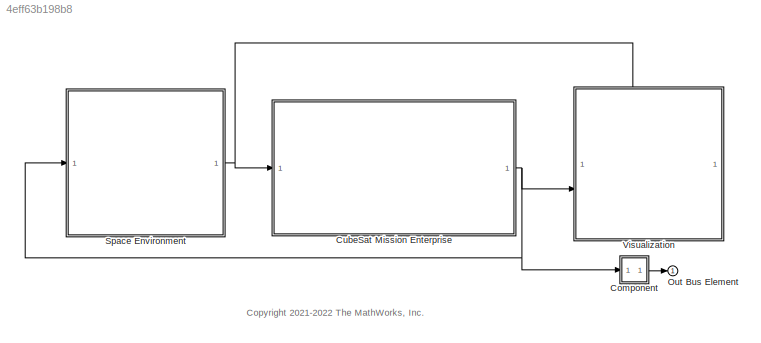
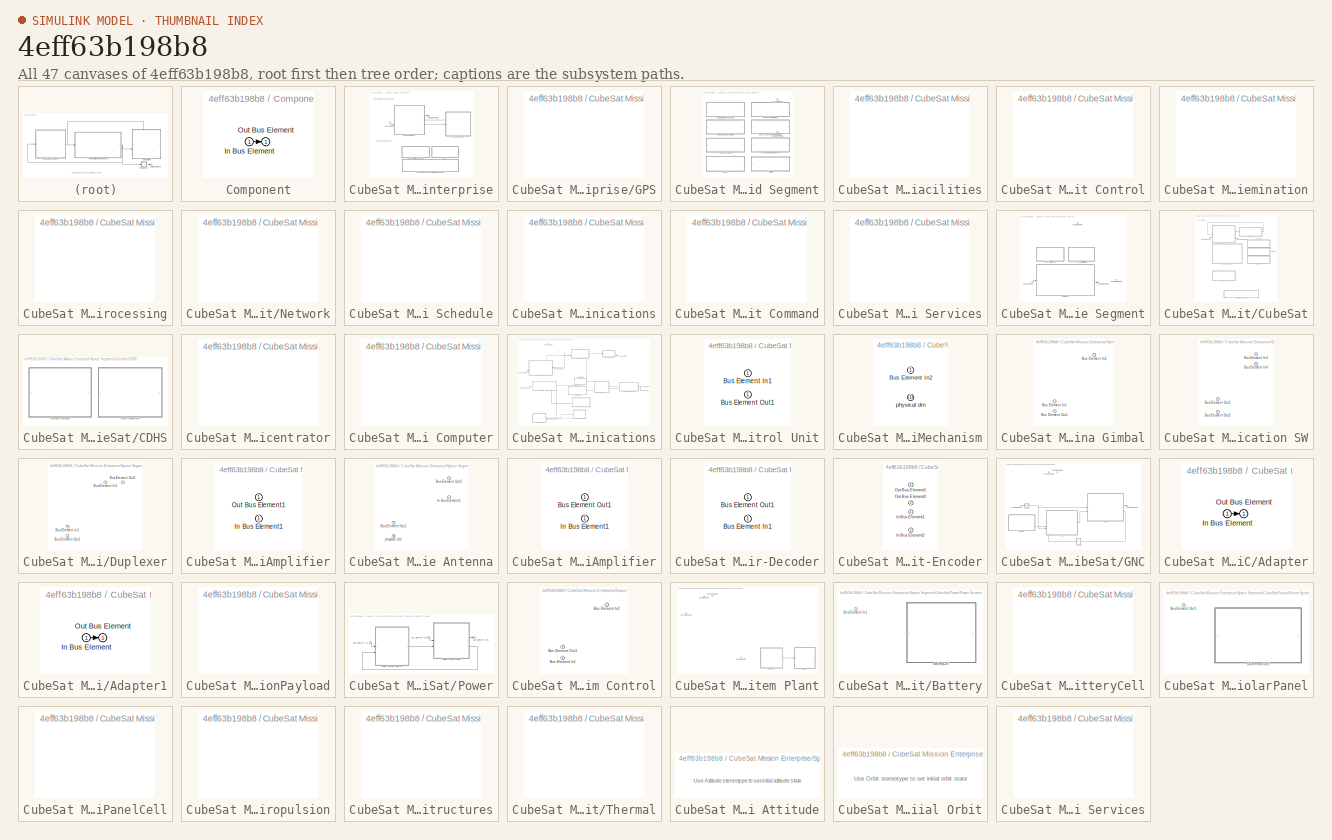
[diagram: thumbnail index - all 47 canvases of the model, root first then tree order]
MODEL slx_4eff63b198b8
KIND model
CONFIG InitFcn = detectChangeOrbitalElements;
BLOCK [SubSystem] Component
  PortSchema = {"entries":[{"content":{"margin":10,"minimumSpacing":15,"sides":[{"content":{"connectorIds":["In1"]},"type":"ConnectorPlacement.EquallySpacedRectSide","uuid":"9886ff7d-e976-4db1-93a5-6c4881d35d20"},{"content":{"connectorIds":["Out1"],"side":"RIGHT"},"type":"ConnectorPlacement.EquallySpacedRectSide","uuid":"ddfda7ac-6297-4455-a293-3eb8c5cedc24"},{"content":{"connectorIds":[],"side":"TOP"},"type":"C...<+272ch>
BLOCK [Inport] Component/In Bus Element
BLOCK [Outport] Component/Out Bus Element
BLOCK [SubSystem] CubeSat Mission Enterprise
  PortSchema = {"entries":[{"content":{"headerSize":26,"margin":15,"minimumSpacing":25,"sides":[{"content":{"connectorIds":["In1"]},"type":"ConnectorPlacement.EquallySpacedRectSide","uuid":"9b45e59d-ccd6-4576-99ba-beb2b78ee3b5"},{"content":{"connectorIds":["Out1"],"side":"RIGHT"},"type":"ConnectorPlacement.EquallySpacedRectSide","uuid":"e86d53dc-9e16-4af5-b392-fbf304437072"},{"content":{"connectorIds":[],"side":...<+288ch>
BLOCK [Outport] CubeSat Mission Enterprise/Bus Element Out1
BLOCK [Inport] CubeSat Mission Enterprise/Environment1
BLOCK [SubSystem] CubeSat Mission Enterprise/GPS
  PortSchema = {"entries":[{"content":{"headerSize":26,"margin":15,"minimumSpacing":25,"sides":[{"content":{"connectorIds":[]},"type":"ConnectorPlacement.EquallySpacedRectSide","uuid":"9b45e59d-ccd6-4576-99ba-beb2b78ee3b5"},{"content":{"connectorIds":[],"side":"RIGHT"},"type":"ConnectorPlacement.EquallySpacedRectSide","uuid":"e86d53dc-9e16-4af5-b392-fbf304437072"},{"content":{"connectorIds":[],"side":"TOP"},"typ...<+279ch>  <repeated x9 — deduplicated; at blocks: GPS, Ground Equipment Control, Mission Data Processing, Network, Plan and Schedule, Ground Station Services, CDHS, Structures, Tranport, Launch and Deploy Services>
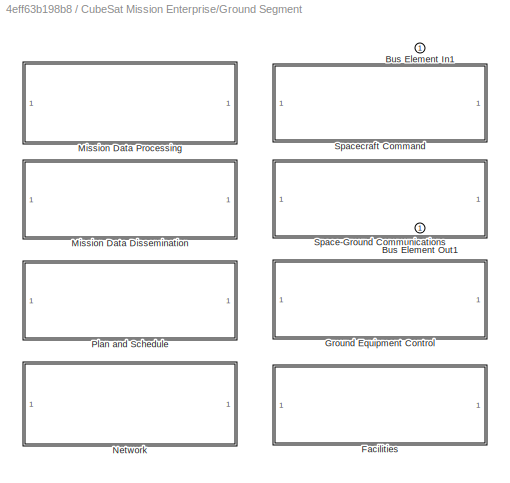
BLOCK [SubSystem] CubeSat Mission Enterprise/Ground Segment
  PortSchema = {"entries":[{"content":{"headerSize":26,"margin":15,"minimumSpacing":25,"sides":[{"content":{"connectorIds":["Out1","In1"]},"type":"ConnectorPlacement.EquallySpacedRectSide","uuid":"9b45e59d-ccd6-4576-99ba-beb2b78ee3b5"},{"content":{"connectorIds":[],"side":"RIGHT"},"type":"ConnectorPlacement.EquallySpacedRectSide","uuid":"e86d53dc-9e16-4af5-b392-fbf304437072"},{"content":{"connectorIds":[],"side"...<+291ch>
BLOCK [Inport] CubeSat Mission Enterprise/Ground Segment/Bus Element In1
BLOCK [Outport] CubeSat Mission Enterprise/Ground Segment/Bus Element Out1
BLOCK [SubSystem] CubeSat Mission Enterprise/Ground Segment/Facilities
  PortSchema = {"entries":[{"content":{"headerSize":26,"margin":15,"minimumSpacing":25,"sides":[{"content":{"connectorIds":[]},"type":"ConnectorPlacement.EquallySpacedRectSide","uuid":"ec0b20de-43af-4595-9773-1ccab80dcb2a"},{"content":{"connectorIds":[],"side":"RIGHT"},"type":"ConnectorPlacement.EquallySpacedRectSide","uuid":"ac6e6885-e3fb-4062-8a30-0baee43cecf2"},{"content":{"connectorIds":[],"side":"TOP"},"typ...<+277ch>
BLOCK [SubSystem] CubeSat Mission Enterprise/Ground Segment/Ground Equipment Control
BLOCK [SubSystem] CubeSat Mission Enterprise/Ground Segment/Mission Data Dissemination
  PortSchema = {"entries":[{"content":{"headerSize":26,"margin":15,"minimumSpacing":25,"sides":[{"content":{"connectorIds":[]},"type":"ConnectorPlacement.EquallySpacedRectSide","uuid":"9b45e59d-ccd6-4576-99ba-beb2b78ee3b5"},{"content":{"connectorIds":[],"side":"RIGHT"},"type":"ConnectorPlacement.EquallySpacedRectSide","uuid":"e86d53dc-9e16-4af5-b392-fbf304437072"},{"content":{"connectorIds":[],"side":"TOP"},"typ...<+277ch>  <repeated x8 — deduplicated; at blocks: Mission Data Dissemination, Space-Ground Communications, Spacecraft Command, CubeSat Initial Attitude, CubeSat Initial Orbit, MissionPayload, Propulsion, Thermal>
BLOCK [SubSystem] CubeSat Mission Enterprise/Ground Segment/Mission Data Processing
BLOCK [SubSystem] CubeSat Mission Enterprise/Ground Segment/Network
BLOCK [SubSystem] CubeSat Mission Enterprise/Ground Segment/Plan and Schedule
BLOCK [SubSystem] CubeSat Mission Enterprise/Ground Segment/Space-Ground Communications
BLOCK [SubSystem] CubeSat Mission Enterprise/Ground Segment/Spacecraft Command
BLOCK [SubSystem] CubeSat Mission Enterprise/Ground Station Services
BLOCK [SubSystem] CubeSat Mission Enterprise/Space Segment
  PortSchema = {"entries":[{"content":{"headerSize":26,"margin":15,"minimumSpacing":25,"sides":[{"content":{"connectorIds":["In2"]},"type":"ConnectorPlacement.EquallySpacedRectSide","uuid":"9b45e59d-ccd6-4576-99ba-beb2b78ee3b5"},{"content":{"connectorIds":["Out1","In1","Out2"],"side":"RIGHT"},"type":"ConnectorPlacement.EquallySpacedRectSide","uuid":"e86d53dc-9e16-4af5-b392-fbf304437072"},{"content":{"connectorId...<+301ch>
BLOCK [Inport] CubeSat Mission Enterprise/Space Segment/Bus Element In1
BLOCK [Outport] CubeSat Mission Enterprise/Space Segment/Bus Element Out1
BLOCK [Outport] CubeSat Mission Enterprise/Space Segment/Bus Element Out2
  Port = 2
BLOCK [SubSystem] CubeSat Mission Enterprise/Space Segment/CubeSat
  PortSchema = {"entries":[{"content":{"headerSize":26,"margin":15,"minimumSpacing":25,"sides":[{"content":{"connectorIds":["In1"]},"type":"ConnectorPlacement.EquallySpacedRectSide","uuid":"9b45e59d-ccd6-4576-99ba-beb2b78ee3b5"},{"content":{"connectorIds":["Out1"],"side":"RIGHT"},"type":"ConnectorPlacement.EquallySpacedRectSide","uuid":"e86d53dc-9e16-4af5-b392-fbf304437072"},{"content":{"connectorIds":[],"side":...<+288ch>
BLOCK [SubSystem] CubeSat Mission Enterprise/Space Segment/CubeSat Initial Attitude
BLOCK [SubSystem] CubeSat Mission Enterprise/Space Segment/CubeSat Initial Orbit
BLOCK [Outport] CubeSat Mission Enterprise/Space Segment/CubeSat/Bus Element Out1
BLOCK [SubSystem] CubeSat Mission Enterprise/Space Segment/CubeSat/CDHS
BLOCK [SubSystem] CubeSat Mission Enterprise/Space Segment/CubeSat/CDHS/Data Concentrator
  PortSchema = {"entries":[{"content":{"headerSize":26,"margin":15,"minimumSpacing":25,"sides":[{"content":{"connectorIds":[]},"type":"ConnectorPlacement.EquallySpacedRectSide","uuid":"5f91b340-2dca-474f-99b1-4cfb93e98d8a"},{"content":{"connectorIds":[],"side":"RIGHT"},"type":"ConnectorPlacement.EquallySpacedRectSide","uuid":"d2e4d2f7-eaea-406c-8999-5255faa209a3"},{"content":{"connectorIds":[],"side":"TOP"},"typ...<+277ch>
BLOCK [SubSystem] CubeSat Mission Enterprise/Space Segment/CubeSat/CDHS/OnBoard Computer
  PortSchema = {"entries":[{"content":{"headerSize":26,"margin":15,"minimumSpacing":25,"sides":[{"content":{"connectorIds":[]},"type":"ConnectorPlacement.EquallySpacedRectSide","uuid":"5f91b340-2dca-474f-99b1-4cfb93e98d8a"},{"content":{"connectorIds":[],"side":"RIGHT"},"type":"ConnectorPlacement.EquallySpacedRectSide","uuid":"d2e4d2f7-eaea-406c-8999-5255faa209a3"},{"content":{"connectorIds":[],"side":"TOP"},"typ...<+277ch>
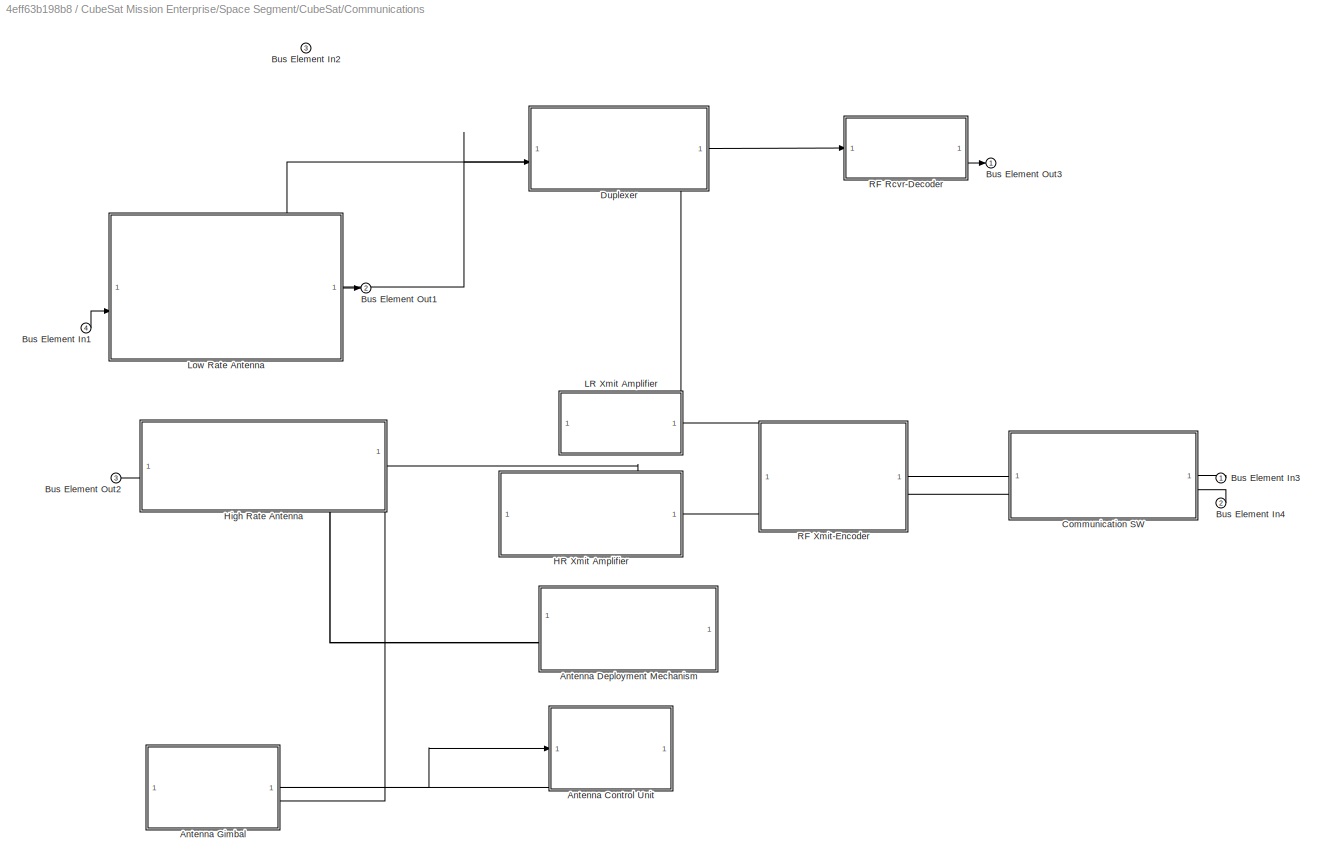
BLOCK [SubSystem] CubeSat Mission Enterprise/Space Segment/CubeSat/Communications
  PortSchema = {"entries":[{"content":{"headerSize":26,"margin":15,"minimumSpacing":25,"sides":[{"content":{"connectorIds":["Out2","Out3","In4"]},"type":"ConnectorPlacement.EquallySpacedRectSide","uuid":"9b45e59d-ccd6-4576-99ba-beb2b78ee3b5"},{"content":{"connectorIds":["In1","In2","Out1"],"side":"RIGHT"},"type":"ConnectorPlacement.EquallySpacedRectSide","uuid":"e86d53dc-9e16-4af5-b392-fbf304437072"},{"content":...<+445ch>
BLOCK [SubSystem] CubeSat Mission Enterprise/Space Segment/CubeSat/Communications/Antenna Control Unit
  PortSchema = {"entries":[{"content":{"headerSize":26,"margin":15,"minimumSpacing":25,"sides":[{"content":{"connectorIds":["Out1","In1"]},"type":"ConnectorPlacement.EquallySpacedRectSide","uuid":"d12c9c4e-7d10-4150-a1f7-4bc66b9b2e34"},{"content":{"side":"RIGHT"},"type":"ConnectorPlacement.EquallySpacedRectSide","uuid":"793dc56b-3770-4e46-8fb3-9dca20abd5c7"},{"content":{"side":"TOP"},"type":"ConnectorPlacement.E...<+253ch>
BLOCK [Inport] CubeSat Mission Enterprise/Space Segment/CubeSat/Communications/Antenna Control Unit/Bus Element In1
BLOCK [Outport] CubeSat Mission Enterprise/Space Segment/CubeSat/Communications/Antenna Control Unit/Bus Element Out1
BLOCK [SubSystem] CubeSat Mission Enterprise/Space Segment/CubeSat/Communications/Antenna Deployment Mechanism
  PortSchema = {"entries":[{"content":{"headerSize":26,"margin":15,"minimumSpacing":25,"sides":[{"content":{"connectorIds":["LConn1"]},"type":"ConnectorPlacement.EquallySpacedRectSide","uuid":"d12c9c4e-7d10-4150-a1f7-4bc66b9b2e34"},{"content":{"connectorIds":["In1"],"side":"RIGHT"},"type":"ConnectorPlacement.EquallySpacedRectSide","uuid":"793dc56b-3770-4e46-8fb3-9dca20abd5c7"},{"content":{"side":"TOP"},"type":"C...<+272ch>
BLOCK [Inport] CubeSat Mission Enterprise/Space Segment/CubeSat/Communications/Antenna Deployment Mechanism/Bus Element In2
BLOCK [PMIOPort] CubeSat Mission Enterprise/Space Segment/CubeSat/Communications/Antenna Deployment Mechanism/physical dm
  Side = Left
BLOCK [SubSystem] CubeSat Mission Enterprise/Space Segment/CubeSat/Communications/Antenna Gimbal
  PortSchema = {"entries":[{"content":{"headerSize":26,"margin":15,"minimumSpacing":25,"sides":[{"content":{},"type":"ConnectorPlacement.EquallySpacedRectSide","uuid":"d12c9c4e-7d10-4150-a1f7-4bc66b9b2e34"},{"content":{"connectorIds":["In1","Out1"],"side":"RIGHT"},"type":"ConnectorPlacement.EquallySpacedRectSide","uuid":"793dc56b-3770-4e46-8fb3-9dca20abd5c7"},{"content":{"connectorIds":["In2"],"side":"TOP"},"typ...<+277ch>
BLOCK [Inport] CubeSat Mission Enterprise/Space Segment/CubeSat/Communications/Antenna Gimbal/Bus Element In1
  Port = 2
BLOCK [Inport] CubeSat Mission Enterprise/Space Segment/CubeSat/Communications/Antenna Gimbal/Bus Element In2
BLOCK [Outport] CubeSat Mission Enterprise/Space Segment/CubeSat/Communications/Antenna Gimbal/Bus Element Out1
BLOCK [Inport] CubeSat Mission Enterprise/Space Segment/CubeSat/Communications/Bus Element In1
  Port = 4
BLOCK [Inport] CubeSat Mission Enterprise/Space Segment/CubeSat/Communications/Bus Element In2
  Port = 3
BLOCK [Inport] CubeSat Mission Enterprise/Space Segment/CubeSat/Communications/Bus Element In3
BLOCK [Inport] CubeSat Mission Enterprise/Space Segment/CubeSat/Communications/Bus Element In4
  Port = 2
BLOCK [Outport] CubeSat Mission Enterprise/Space Segment/CubeSat/Communications/Bus Element Out1
  Port = 2
BLOCK [Outport] CubeSat Mission Enterprise/Space Segment/CubeSat/Communications/Bus Element Out2
  Port = 3
BLOCK [Outport] CubeSat Mission Enterprise/Space Segment/CubeSat/Communications/Bus Element Out3
BLOCK [SubSystem] CubeSat Mission Enterprise/Space Segment/CubeSat/Communications/Communication SW
  PortSchema = {"entries":[{"content":{"headerSize":26,"margin":15,"minimumSpacing":25,"sides":[{"content":{"connectorIds":["Out1","Out2"]},"type":"ConnectorPlacement.EquallySpacedRectSide","uuid":"d12c9c4e-7d10-4150-a1f7-4bc66b9b2e34"},{"content":{"connectorIds":["In1","In2"],"side":"RIGHT"},"type":"ConnectorPlacement.EquallySpacedRectSide","uuid":"793dc56b-3770-4e46-8fb3-9dca20abd5c7"},{"content":{"side":"TOP"...<+283ch>
BLOCK [Inport] CubeSat Mission Enterprise/Space Segment/CubeSat/Communications/Communication SW/Bus Element In3
BLOCK [Inport] CubeSat Mission Enterprise/Space Segment/CubeSat/Communications/Communication SW/Bus Element In4
  Port = 2
BLOCK [Outport] CubeSat Mission Enterprise/Space Segment/CubeSat/Communications/Communication SW/Bus Element Out1
BLOCK [Outport] CubeSat Mission Enterprise/Space Segment/CubeSat/Communications/Communication SW/Bus Element Out2
  Port = 2
BLOCK [SubSystem] CubeSat Mission Enterprise/Space Segment/CubeSat/Communications/Duplexer
  PortSchema = {"entries":[{"content":{"headerSize":26,"margin":15,"minimumSpacing":25,"sides":[{"content":{"connectorIds":["Out2","In2"]},"type":"ConnectorPlacement.EquallySpacedRectSide","uuid":"d12c9c4e-7d10-4150-a1f7-4bc66b9b2e34"},{"content":{"connectorIds":["Out1"],"side":"RIGHT"},"type":"ConnectorPlacement.EquallySpacedRectSide","uuid":"793dc56b-3770-4e46-8fb3-9dca20abd5c7"},{"content":{"side":"TOP"},"typ...<+426ch>
BLOCK [Inport] CubeSat Mission Enterprise/Space Segment/CubeSat/Communications/Duplexer/Bus Element In1
  Port = 2
BLOCK [Inport] CubeSat Mission Enterprise/Space Segment/CubeSat/Communications/Duplexer/Bus Element In2
BLOCK [Outport] CubeSat Mission Enterprise/Space Segment/CubeSat/Communications/Duplexer/Bus Element Out1
  Port = 2
BLOCK [Outport] CubeSat Mission Enterprise/Space Segment/CubeSat/Communications/Duplexer/Bus Element Out2
BLOCK [SubSystem] CubeSat Mission Enterprise/Space Segment/CubeSat/Communications/HR Xmit Amplifier
  PortSchema = {"entries":[{"content":{"headerSize":26,"margin":15,"minimumSpacing":25,"sides":[{"content":{"connectorIds":["Out1"]},"type":"ConnectorPlacement.EquallySpacedRectSide","uuid":"d12c9c4e-7d10-4150-a1f7-4bc66b9b2e34"},{"content":{"connectorIds":["In1"],"side":"RIGHT"},"type":"ConnectorPlacement.EquallySpacedRectSide","uuid":"793dc56b-3770-4e46-8fb3-9dca20abd5c7"},{"content":{"side":"TOP"},"type":"Con...<+270ch>
BLOCK [Inport] CubeSat Mission Enterprise/Space Segment/CubeSat/Communications/HR Xmit Amplifier/In Bus Element1
BLOCK [Outport] CubeSat Mission Enterprise/Space Segment/CubeSat/Communications/HR Xmit Amplifier/Out Bus Element1
BLOCK [SubSystem] CubeSat Mission Enterprise/Space Segment/CubeSat/Communications/High Rate Antenna
  PortSchema = {"entries":[{"content":{"headerSize":26,"margin":15,"minimumSpacing":25,"sides":[{"content":{"connectorIds":["Out2"]},"type":"ConnectorPlacement.EquallySpacedRectSide","uuid":"d12c9c4e-7d10-4150-a1f7-4bc66b9b2e34"},{"content":{"connectorIds":["In1"],"side":"RIGHT"},"type":"ConnectorPlacement.EquallySpacedRectSide","uuid":"793dc56b-3770-4e46-8fb3-9dca20abd5c7"},{"content":{"side":"TOP"},"type":"Con...<+429ch>
BLOCK [Outport] CubeSat Mission Enterprise/Space Segment/CubeSat/Communications/High Rate Antenna/Bus Element Out1
  Port = 2
BLOCK [Outport] CubeSat Mission Enterprise/Space Segment/CubeSat/Communications/High Rate Antenna/Bus Element Out2
BLOCK [Inport] CubeSat Mission Enterprise/Space Segment/CubeSat/Communications/High Rate Antenna/In Bus Element1
BLOCK [PMIOPort] CubeSat Mission Enterprise/Space Segment/CubeSat/Communications/High Rate Antenna/physical dm
  Side = Right
BLOCK [SubSystem] CubeSat Mission Enterprise/Space Segment/CubeSat/Communications/LR Xmit Amplifier
  PortSchema = {"entries":[{"content":{"headerSize":26,"margin":15,"minimumSpacing":25,"sides":[{"content":{},"type":"ConnectorPlacement.EquallySpacedRectSide","uuid":"d12c9c4e-7d10-4150-a1f7-4bc66b9b2e34"},{"content":{"connectorIds":["In1"],"side":"RIGHT"},"type":"ConnectorPlacement.EquallySpacedRectSide","uuid":"793dc56b-3770-4e46-8fb3-9dca20abd5c7"},{"content":{"connectorIds":["Out1"],"side":"TOP"},"type":"Co...<+271ch>
BLOCK [Outport] CubeSat Mission Enterprise/Space Segment/CubeSat/Communications/LR Xmit Amplifier/Bus Element Out1
BLOCK [Inport] CubeSat Mission Enterprise/Space Segment/CubeSat/Communications/LR Xmit Amplifier/In Bus Element1
BLOCK [ModelReference] CubeSat Mission Enterprise/Space Segment/CubeSat/Communications/Low Rate Antenna
  ModelNameDialog = LowRateAntenna
  ModelReferenceVersion = 1.9
  PortSchema = {"entries":[{"content":{"headerSize":38,"margin":15,"minimumSpacing":25,"sides":[{"content":{"connectorIds":["In1","In2"]},"type":"ConnectorPlacement.EquallySpacedRectSide","uuid":"5f91b340-2dca-474f-99b1-4cfb93e98d8a"},{"content":{"connectorIds":["Out2","Out1"],"side":"RIGHT"},"type":"ConnectorPlacement.EquallySpacedRectSide","uuid":"d2e4d2f7-eaea-406c-8999-5255faa209a3"},{"content":{"side":"TOP"...<+283ch>
BLOCK [SubSystem] CubeSat Mission Enterprise/Space Segment/CubeSat/Communications/RF Rcvr-Decoder
  PortSchema = {"entries":[{"content":{"headerSize":26,"margin":15,"minimumSpacing":25,"sides":[{"content":{"connectorIds":["In1"]},"type":"ConnectorPlacement.EquallySpacedRectSide","uuid":"d12c9c4e-7d10-4150-a1f7-4bc66b9b2e34"},{"content":{"connectorIds":["Out1"],"side":"RIGHT"},"type":"ConnectorPlacement.EquallySpacedRectSide","uuid":"793dc56b-3770-4e46-8fb3-9dca20abd5c7"},{"content":{"side":"TOP"},"type":"Con...<+270ch>
BLOCK [Inport] CubeSat Mission Enterprise/Space Segment/CubeSat/Communications/RF Rcvr-Decoder/Bus Element In1
BLOCK [Outport] CubeSat Mission Enterprise/Space Segment/CubeSat/Communications/RF Rcvr-Decoder/Bus Element Out1
BLOCK [SubSystem] CubeSat Mission Enterprise/Space Segment/CubeSat/Communications/RF Xmit-Encoder
  PortSchema = {"entries":[{"content":{"headerSize":26,"margin":15,"minimumSpacing":25,"sides":[{"content":{"connectorIds":["Out1","Out2"]},"type":"ConnectorPlacement.EquallySpacedRectSide","uuid":"d12c9c4e-7d10-4150-a1f7-4bc66b9b2e34"},{"content":{"connectorIds":["In1","In2"],"side":"RIGHT"},"type":"ConnectorPlacement.EquallySpacedRectSide","uuid":"793dc56b-3770-4e46-8fb3-9dca20abd5c7"},{"content":{"side":"TOP"...<+283ch>
BLOCK [Inport] CubeSat Mission Enterprise/Space Segment/CubeSat/Communications/RF Xmit-Encoder/In Bus Element1
BLOCK [Inport] CubeSat Mission Enterprise/Space Segment/CubeSat/Communications/RF Xmit-Encoder/In Bus Element2
  Port = 2
BLOCK [Outport] CubeSat Mission Enterprise/Space Segment/CubeSat/Communications/RF Xmit-Encoder/Out Bus Element1
BLOCK [Outport] CubeSat Mission Enterprise/Space Segment/CubeSat/Communications/RF Xmit-Encoder/Out Bus Element2
  Port = 2
BLOCK [Inport] CubeSat Mission Enterprise/Space Segment/CubeSat/Environment1
BLOCK [SubSystem] CubeSat Mission Enterprise/Space Segment/CubeSat/GNC
  PortSchema = {"entries":[{"content":{"headerSize":26,"margin":15,"minimumSpacing":25,"sides":[{"content":{"connectorIds":["In1","In2"]},"type":"ConnectorPlacement.EquallySpacedRectSide","uuid":"9b45e59d-ccd6-4576-99ba-beb2b78ee3b5"},{"content":{"connectorIds":["Out1","Out2"],"side":"RIGHT"},"type":"ConnectorPlacement.EquallySpacedRectSide","uuid":"e86d53dc-9e16-4af5-b392-fbf304437072"},{"content":{"connectorId...<+301ch>
BLOCK [ModelReference] CubeSat Mission Enterprise/Space Segment/CubeSat/GNC/ACS
  ModelNameDialog = asbCubeSatACS
  ModelReferenceVersion = 11.0
  PortSchema = {"entries":[{"content":{"headerSize":38,"margin":15,"minimumSpacing":25,"sides":[{"content":{"connectorIds":["In3","In2","In1"]},"type":"ConnectorPlacement.EquallySpacedRectSide","uuid":"0f167fc6-742e-49a6-ba84-7432b698566b"},{"content":{"connectorIds":["Out1"],"side":"RIGHT"},"type":"ConnectorPlacement.EquallySpacedRectSide","uuid":"3739c3b1-9e94-48d6-b273-772045adf57e"},{"content":{"connectorIds...<+444ch>
BLOCK [SubSystem] CubeSat Mission Enterprise/Space Segment/CubeSat/GNC/Adapter
  PortSchema = {"entries":[{"content":{"margin":10,"minimumSpacing":15,"sides":[{"content":{"connectorIds":["In1"]},"type":"ConnectorPlacement.EquallySpacedRectSide","uuid":"0f167fc6-742e-49a6-ba84-7432b698566b"},{"content":{"connectorIds":["Out1"],"side":"RIGHT"},"type":"ConnectorPlacement.EquallySpacedRectSide","uuid":"3739c3b1-9e94-48d6-b273-772045adf57e"},{"content":{"connectorIds":[],"side":"TOP"},"type":"C...<+416ch>
BLOCK [Inport] CubeSat Mission Enterprise/Space Segment/CubeSat/GNC/Adapter/In Bus Element
BLOCK [Outport] CubeSat Mission Enterprise/Space Segment/CubeSat/GNC/Adapter/Out Bus Element
BLOCK [SubSystem] CubeSat Mission Enterprise/Space Segment/CubeSat/GNC/Adapter1
  PortSchema = {"entries":[{"content":{"margin":10,"minimumSpacing":15,"sides":[{"content":{"connectorIds":["Out1"]},"type":"ConnectorPlacement.EquallySpacedRectSide","uuid":"0f167fc6-742e-49a6-ba84-7432b698566b"},{"content":{"connectorIds":["In1"],"side":"RIGHT"},"type":"ConnectorPlacement.EquallySpacedRectSide","uuid":"3739c3b1-9e94-48d6-b273-772045adf57e"},{"content":{"connectorIds":[],"side":"TOP"},"type":"C...<+416ch>
BLOCK [Inport] CubeSat Mission Enterprise/Space Segment/CubeSat/GNC/Adapter1/In Bus Element
BLOCK [Outport] CubeSat Mission Enterprise/Space Segment/CubeSat/GNC/Adapter1/Out Bus Element
BLOCK [Inport] CubeSat Mission Enterprise/Space Segment/CubeSat/GNC/Bus Element In1
  Port = 2
BLOCK [Inport] CubeSat Mission Enterprise/Space Segment/CubeSat/GNC/Bus Element In2
BLOCK [Outport] CubeSat Mission Enterprise/Space Segment/CubeSat/GNC/Bus Element Out1
BLOCK [Outport] CubeSat Mission Enterprise/Space Segment/CubeSat/GNC/Bus Element Out2
  Port = 2
BLOCK [ModelReference] CubeSat Mission Enterprise/Space Segment/CubeSat/GNC/Operator
  ModelNameDialog = asbCubeSatVehicleOperator.slx
  ModelReferenceVersion = 9.0
  PortSchema = {"entries":[{"content":{"headerSize":38,"margin":15,"minimumSpacing":25,"sides":[{"content":{"connectorIds":[]},"type":"ConnectorPlacement.EquallySpacedRectSide","uuid":"0cfa3760-6acd-4ee9-b963-b5fbd04f8f00"},{"content":{"connectorIds":["Out1"],"side":"RIGHT"},"type":"ConnectorPlacement.EquallySpacedRectSide","uuid":"77ddd3d4-6692-4839-8cf9-45c7d2a217c2"},{"content":{"connectorIds":[],"side":"TOP"...<+427ch>
BLOCK [ModelReference] CubeSat Mission Enterprise/Space Segment/CubeSat/GNC/Plant
  ModelNameDialog = asbCubeSatVehiclePlant.slx
  ModelReferenceVersion = 10.0
  PortSchema = {"entries":[{"content":{"headerSize":38,"margin":15,"minimumSpacing":25,"sides":[{"content":{"connectorIds":["In1","In2"]},"type":"ConnectorPlacement.EquallySpacedRectSide","uuid":"03f9f3cf-bad9-4ee2-9ea8-9738e2c4045a"},{"content":{"connectorIds":["Out1","Out2"],"side":"RIGHT"},"type":"ConnectorPlacement.EquallySpacedRectSide","uuid":"a92bb464-fb2e-4a9d-9894-a6e38f24e9d5"},{"content":{"connectorId...<+301ch>
BLOCK [SubSystem] CubeSat Mission Enterprise/Space Segment/CubeSat/MissionPayload
BLOCK [SubSystem] CubeSat Mission Enterprise/Space Segment/CubeSat/Power
  PortSchema = {"entries":[{"content":{"headerSize":26,"margin":15,"minimumSpacing":25,"sides":[{"content":{"connectorIds":["In1"]},"type":"ConnectorPlacement.EquallySpacedRectSide","uuid":"9b45e59d-ccd6-4576-99ba-beb2b78ee3b5"},{"content":{"connectorIds":["Out1"],"side":"RIGHT"},"type":"ConnectorPlacement.EquallySpacedRectSide","uuid":"e86d53dc-9e16-4af5-b392-fbf304437072"},{"content":{"connectorIds":[],"side":...<+290ch>
BLOCK [Inport] CubeSat Mission Enterprise/Space Segment/CubeSat/Power/Bus Element In1
BLOCK [Inport] CubeSat Mission Enterprise/Space Segment/CubeSat/Power/Bus Element In2
BLOCK [Outport] CubeSat Mission Enterprise/Space Segment/CubeSat/Power/Bus Element Out1
BLOCK [SubSystem] CubeSat Mission Enterprise/Space Segment/CubeSat/Power/Power System Control
  PortSchema = {"entries":[{"content":{"headerSize":26,"margin":15,"minimumSpacing":25,"sides":[{"content":{"connectorIds":["In1","In2"]},"type":"ConnectorPlacement.EquallySpacedRectSide","uuid":"796081c6-2161-46d9-94c7-9250e1efb39a"},{"content":{"connectorIds":["Out1"],"side":"RIGHT"},"type":"ConnectorPlacement.EquallySpacedRectSide","uuid":"b842dbfb-bf0a-4727-8e1c-eb47e2e48592"},{"content":{"connectorIds":[],"...<+294ch>
  VariantControl = Choice_1
BLOCK [Inport] CubeSat Mission Enterprise/Space Segment/CubeSat/Power/Power System Control/Bus Element In1
  Port = 2
BLOCK [Inport] CubeSat Mission Enterprise/Space Segment/CubeSat/Power/Power System Control/Bus Element In2
BLOCK [Outport] CubeSat Mission Enterprise/Space Segment/CubeSat/Power/Power System Control/Bus Element Out1
BLOCK [SubSystem] CubeSat Mission Enterprise/Space Segment/CubeSat/Power/Power System Plant
  PortSchema = {"entries":[{"content":{"headerSize":26,"margin":15,"minimumSpacing":25,"sides":[{"content":{"connectorIds":["In1","In2"]},"type":"ConnectorPlacement.EquallySpacedRectSide","uuid":"796081c6-2161-46d9-94c7-9250e1efb39a"},{"content":{"connectorIds":["Out1","Out2"],"side":"RIGHT"},"type":"ConnectorPlacement.EquallySpacedRectSide","uuid":"b842dbfb-bf0a-4727-8e1c-eb47e2e48592"},{"content":{"connectorId...<+301ch>
  VariantControl = Choice_1
BLOCK [SubSystem] CubeSat Mission Enterprise/Space Segment/CubeSat/Power/Power System Plant/Battery
  PortSchema = {"entries":[{"content":{"headerSize":26,"margin":15,"minimumSpacing":25,"sides":[{"content":{"connectorIds":["In1"]},"type":"ConnectorPlacement.EquallySpacedRectSide","uuid":"99007498-99ba-4c23-a0a0-87e1543943ee"},{"content":{"connectorIds":[],"side":"RIGHT"},"type":"ConnectorPlacement.EquallySpacedRectSide","uuid":"554f3d31-4e95-4b23-9d3b-85f383ee0045"},{"content":{"connectorIds":[],"side":"TOP"}...<+282ch>
BLOCK [SubSystem] CubeSat Mission Enterprise/Space Segment/CubeSat/Power/Power System Plant/Battery/BatteryCell
  PortSchema = {"entries":[{"content":{"headerSize":26,"margin":15,"minimumSpacing":25,"sides":[{"content":{"connectorIds":[]},"type":"ConnectorPlacement.EquallySpacedRectSide","uuid":"bdb7f036-cfc5-488a-888f-b9d18995973e"},{"content":{"connectorIds":[],"side":"RIGHT"},"type":"ConnectorPlacement.EquallySpacedRectSide","uuid":"bf580f20-7193-4743-ad48-17eb92535429"},{"content":{"connectorIds":[],"side":"TOP"},"typ...<+279ch>
BLOCK [Inport] CubeSat Mission Enterprise/Space Segment/CubeSat/Power/Power System Plant/Battery/Bus Element In1
BLOCK [Inport] CubeSat Mission Enterprise/Space Segment/CubeSat/Power/Power System Plant/Bus Element In1
  Port = 2
BLOCK [Inport] CubeSat Mission Enterprise/Space Segment/CubeSat/Power/Power System Plant/Bus Element In2
BLOCK [Outport] CubeSat Mission Enterprise/Space Segment/CubeSat/Power/Power System Plant/Bus Element Out1
  Port = 2
BLOCK [Outport] CubeSat Mission Enterprise/Space Segment/CubeSat/Power/Power System Plant/Bus Element Out2
BLOCK [SubSystem] CubeSat Mission Enterprise/Space Segment/CubeSat/Power/Power System Plant/SolarPanel
  PortSchema = {"entries":[{"content":{"headerSize":26,"margin":15,"minimumSpacing":25,"sides":[{"content":{"connectorIds":[]},"type":"ConnectorPlacement.EquallySpacedRectSide","uuid":"bdb7f036-cfc5-488a-888f-b9d18995973e"},{"content":{"connectorIds":["Out1"],"side":"RIGHT"},"type":"ConnectorPlacement.EquallySpacedRectSide","uuid":"bf580f20-7193-4743-ad48-17eb92535429"},{"content":{"connectorIds":[],"side":"TOP"...<+283ch>
BLOCK [Outport] CubeSat Mission Enterprise/Space Segment/CubeSat/Power/Power System Plant/SolarPanel/Bus Element Out1
BLOCK [SubSystem] CubeSat Mission Enterprise/Space Segment/CubeSat/Power/Power System Plant/SolarPanel/SolarPanelCell
  PortSchema = {"entries":[{"content":{"headerSize":26,"margin":15,"minimumSpacing":25,"sides":[{"content":{"connectorIds":[]},"type":"ConnectorPlacement.EquallySpacedRectSide","uuid":"bdb7f036-cfc5-488a-888f-b9d18995973e"},{"content":{"connectorIds":[],"side":"RIGHT"},"type":"ConnectorPlacement.EquallySpacedRectSide","uuid":"bf580f20-7193-4743-ad48-17eb92535429"},{"content":{"connectorIds":[],"side":"TOP"},"typ...<+279ch>
BLOCK [SubSystem] CubeSat Mission Enterprise/Space Segment/CubeSat/Propulsion
BLOCK [SubSystem] CubeSat Mission Enterprise/Space Segment/CubeSat/Structures
BLOCK [SubSystem] CubeSat Mission Enterprise/Space Segment/CubeSat/Thermal
BLOCK [Inport] CubeSat Mission Enterprise/Space Segment/Environment1
  Port = 2
BLOCK [SubSystem] CubeSat Mission Enterprise/Tranport, Launch and Deploy Services
BLOCK [Outport] Out Bus Element
BLOCK [ModelReference] Space Environment
  ModelNameDialog = asbCubeSatEnvironment.slx
  ModelReferenceVersion = 9.3
  PortSchema = {"entries":[{"content":{"headerSize":38,"margin":15,"minimumSpacing":25,"sides":[{"content":{"connectorIds":["In1"]},"type":"ConnectorPlacement.EquallySpacedRectSide","uuid":"f3e38669-0fba-438a-830e-4ecb3c477208"},{"content":{"connectorIds":["Out1"],"side":"RIGHT"},"type":"ConnectorPlacement.EquallySpacedRectSide","uuid":"56bbb7a2-868c-414d-930b-0bd7cd2045f0"},{"content":{"connectorIds":[],"side":...<+290ch>
BLOCK [ModelReference] Visualization
  ModelNameDialog = asbCubeSatVisualization
  ModelReferenceVersion = 10.0
  PortSchema = {"entries":[{"content":{"headerSize":38,"margin":15,"minimumSpacing":25,"sides":[{"content":{"connectorIds":["In2"]},"type":"ConnectorPlacement.EquallySpacedRectSide","uuid":"11899bdf-e452-4ab3-837e-0cb9b9384128"},{"content":{"connectorIds":[],"side":"RIGHT"},"type":"ConnectorPlacement.EquallySpacedRectSide","uuid":"e13bda72-6c98-45bd-b419-0150b74f0acb"},{"content":{"connectorIds":["In1"],"side":"...<+287ch>
ANNOTATION (root): <copyright redacted>
ANNOTATION CubeSat Mission Enterprise: CubeSat Mission Components
ANNOTATION CubeSat Mission Enterprise: External Components
ANNOTATION CubeSat Mission Enterprise/Space Segment/CubeSat: Spacecraft Bus
ANNOTATION CubeSat Mission Enterprise/Space Segment/CubeSat Initial Attitude: Use Attitude stereotype to set initial attitude state
ANNOTATION CubeSat Mission Enterprise/Space Segment/CubeSat Initial Orbit: Use Orbit stereotype to set initial orbit state
LINE Component/In Bus Element:1 -> Component/Out Bus Element:1
LINE Component:1 -> Out Bus Element:1
LINE CubeSat Mission Enterprise/Environment1:1 -> CubeSat Mission Enterprise/Space Segment:2
LINE CubeSat Mission Enterprise/Ground Segment:1 -> CubeSat Mission Enterprise/Space Segment:1
LINE CubeSat Mission Enterprise/Space Segment/CubeSat/Communications/Antenna Control Unit:1 -> CubeSat Mission Enterprise/Space Segment/CubeSat/Communications/Antenna Gimbal:1
LINE CubeSat Mission Enterprise/Space Segment/CubeSat/Communications/Antenna Gimbal:1 -> CubeSat Mission Enterprise/Space Segment/CubeSat/Communications/Antenna Control Unit:1
LINE CubeSat Mission Enterprise/Space Segment/CubeSat/Communications/Bus Element In1:1 -> CubeSat Mission Enterprise/Space Segment/CubeSat/Communications/Low Rate Antenna:2
LINE CubeSat Mission Enterprise/Space Segment/CubeSat/Communications/Bus Element In3:1 -> CubeSat Mission Enterprise/Space Segment/CubeSat/Communications/Communication SW:1
LINE CubeSat Mission Enterprise/Space Segment/CubeSat/Communications/Bus Element In4:1 -> CubeSat Mission Enterprise/Space Segment/CubeSat/Communications/Communication SW:2
LINE CubeSat Mission Enterprise/Space Segment/CubeSat/Communications/Communication SW:1 -> CubeSat Mission Enterprise/Space Segment/CubeSat/Communications/RF Xmit-Encoder:1
LINE CubeSat Mission Enterprise/Space Segment/CubeSat/Communications/Communication SW:2 -> CubeSat Mission Enterprise/Space Segment/CubeSat/Communications/RF Xmit-Encoder:2
LINE CubeSat Mission Enterprise/Space Segment/CubeSat/Communications/Duplexer:1 -> CubeSat Mission Enterprise/Space Segment/CubeSat/Communications/RF Rcvr-Decoder:1
LINE CubeSat Mission Enterprise/Space Segment/CubeSat/Communications/Duplexer:2 -> CubeSat Mission Enterprise/Space Segment/CubeSat/Communications/Low Rate Antenna:1
LINE CubeSat Mission Enterprise/Space Segment/CubeSat/Communications/HR Xmit Amplifier:1 -> CubeSat Mission Enterprise/Space Segment/CubeSat/Communications/High Rate Antenna:1
LINE CubeSat Mission Enterprise/Space Segment/CubeSat/Communications/High Rate Antenna:1 -> CubeSat Mission Enterprise/Space Segment/CubeSat/Communications/Antenna Gimbal:2
LINE CubeSat Mission Enterprise/Space Segment/CubeSat/Communications/High Rate Antenna:2 -> CubeSat Mission Enterprise/Space Segment/CubeSat/Communications/Bus Element Out2:1
LINE CubeSat Mission Enterprise/Space Segment/CubeSat/Communications/LR Xmit Amplifier:1 -> CubeSat Mission Enterprise/Space Segment/CubeSat/Communications/Duplexer:1
LINE CubeSat Mission Enterprise/Space Segment/CubeSat/Communications/Low Rate Antenna:1 -> CubeSat Mission Enterprise/Space Segment/CubeSat/Communications/Duplexer:2
LINE CubeSat Mission Enterprise/Space Segment/CubeSat/Communications/Low Rate Antenna:2 -> CubeSat Mission Enterprise/Space Segment/CubeSat/Communications/Bus Element Out1:1
LINE CubeSat Mission Enterprise/Space Segment/CubeSat/Communications/RF Rcvr-Decoder:1 -> CubeSat Mission Enterprise/Space Segment/CubeSat/Communications/Bus Element Out3:1
LINE CubeSat Mission Enterprise/Space Segment/CubeSat/Communications/RF Xmit-Encoder:1 -> CubeSat Mission Enterprise/Space Segment/CubeSat/Communications/LR Xmit Amplifier:1
LINE CubeSat Mission Enterprise/Space Segment/CubeSat/Communications/RF Xmit-Encoder:2 -> CubeSat Mission Enterprise/Space Segment/CubeSat/Communications/HR Xmit Amplifier:1
LINE CubeSat Mission Enterprise/Space Segment/CubeSat/Environment1:1 -> CubeSat Mission Enterprise/Space Segment/CubeSat/GNC:2
LINE CubeSat Mission Enterprise/Space Segment/CubeSat/GNC/ACS:1 -> CubeSat Mission Enterprise/Space Segment/CubeSat/GNC/Plant:2
LINE CubeSat Mission Enterprise/Space Segment/CubeSat/GNC/Adapter/In Bus Element:1 -> CubeSat Mission Enterprise/Space Segment/CubeSat/GNC/Adapter/Out Bus Element:1
LINE CubeSat Mission Enterprise/Space Segment/CubeSat/GNC/Adapter1/In Bus Element:1 -> CubeSat Mission Enterprise/Space Segment/CubeSat/GNC/Adapter1/Out Bus Element:1
LINE CubeSat Mission Enterprise/Space Segment/CubeSat/GNC/Adapter1:1 -> CubeSat Mission Enterprise/Space Segment/CubeSat/GNC/ACS:1
NET CubeSat Mission Enterprise/Space Segment/CubeSat/GNC/Adapter:1 -> CubeSat Mission Enterprise/Space Segment/CubeSat/GNC/ACS:3, CubeSat Mission Enterprise/Space Segment/CubeSat/GNC/Plant:1
LINE CubeSat Mission Enterprise/Space Segment/CubeSat/GNC/Bus Element In1:1 -> CubeSat Mission Enterprise/Space Segment/CubeSat/GNC/Adapter:1
LINE CubeSat Mission Enterprise/Space Segment/CubeSat/GNC/Operator:1 -> CubeSat Mission Enterprise/Space Segment/CubeSat/GNC/ACS:2
LINE CubeSat Mission Enterprise/Space Segment/CubeSat/GNC/Plant:1 -> CubeSat Mission Enterprise/Space Segment/CubeSat/GNC/Bus Element Out2:1
LINE CubeSat Mission Enterprise/Space Segment/CubeSat/GNC/Plant:2 -> CubeSat Mission Enterprise/Space Segment/CubeSat/GNC/Adapter1:1
LINE CubeSat Mission Enterprise/Space Segment/CubeSat/GNC:1 -> CubeSat Mission Enterprise/Space Segment/CubeSat/Power:1
LINE CubeSat Mission Enterprise/Space Segment/CubeSat/GNC:2 -> CubeSat Mission Enterprise/Space Segment/CubeSat/Bus Element Out1:1
LINE CubeSat Mission Enterprise/Space Segment/CubeSat/Power/Bus Element In1:1 -> CubeSat Mission Enterprise/Space Segment/CubeSat/Power/Power System Control:1
LINE CubeSat Mission Enterprise/Space Segment/CubeSat/Power/Bus Element In2:1 -> CubeSat Mission Enterprise/Space Segment/CubeSat/Power/Power System Plant:1
LINE CubeSat Mission Enterprise/Space Segment/CubeSat/Power/Power System Control:1 -> CubeSat Mission Enterprise/Space Segment/CubeSat/Power/Power System Plant:2
LINE CubeSat Mission Enterprise/Space Segment/CubeSat/Power/Power System Plant/SolarPanel:1 -> CubeSat Mission Enterprise/Space Segment/CubeSat/Power/Power System Plant/Battery:1
LINE CubeSat Mission Enterprise/Space Segment/CubeSat/Power/Power System Plant:1 -> CubeSat Mission Enterprise/Space Segment/CubeSat/Power/Bus Element Out1:1
LINE CubeSat Mission Enterprise/Space Segment/CubeSat/Power/Power System Plant:2 -> CubeSat Mission Enterprise/Space Segment/CubeSat/Power/Power System Control:2
LINE CubeSat Mission Enterprise/Space Segment/CubeSat/Power:1 -> CubeSat Mission Enterprise/Space Segment/CubeSat/GNC:1
LINE CubeSat Mission Enterprise/Space Segment/CubeSat:1 -> CubeSat Mission Enterprise/Space Segment/Bus Element Out1:1
LINE CubeSat Mission Enterprise/Space Segment/Environment1:1 -> CubeSat Mission Enterprise/Space Segment/CubeSat:1
LINE CubeSat Mission Enterprise/Space Segment:1 -> CubeSat Mission Enterprise/Bus Element Out1:1
LINE CubeSat Mission Enterprise/Space Segment:2 -> CubeSat Mission Enterprise/Ground Segment:1
NET CubeSat Mission Enterprise:1 -> Component:1, Space Environment:1, Visualization:2
NET Space Environment:1 -> CubeSat Mission Enterprise:1, Visualization:1
PLINE CubeSat Mission Enterprise/Space Segment/CubeSat/Communications/Antenna Deployment Mechanism:LConn1 -- CubeSat Mission Enterprise/Space Segment/CubeSat/Communications/High Rate Antenna:RConn1
note: NET lines group one-source signal fan-out (src -> all destinations, sorted); 1:1 wires keep LINE
CHART Test Assessment Block states=3 transitions=10
  STATE_LABEL 'Run\n\n'
  STATE_LABEL 'step_1_1'
  STATE_LABEL 'step_1_2'
  STATE_LABEL '[t < 5\n]'
  STATE_LABEL '[~in(Run.step_1_1)]'
  STATE_LABEL '[~in(Run.step_1_2)]'
  STATE_LABEL 'step_1_1'
  STATE_LABEL 'step_1_2'
CHART Test Sequence states=1 transitions=1
  STATE_LABEL 'Run\n\n%% Initialize data outputs.\nencodedXmit2 = 0;\ngndCmd = 0;\n'
